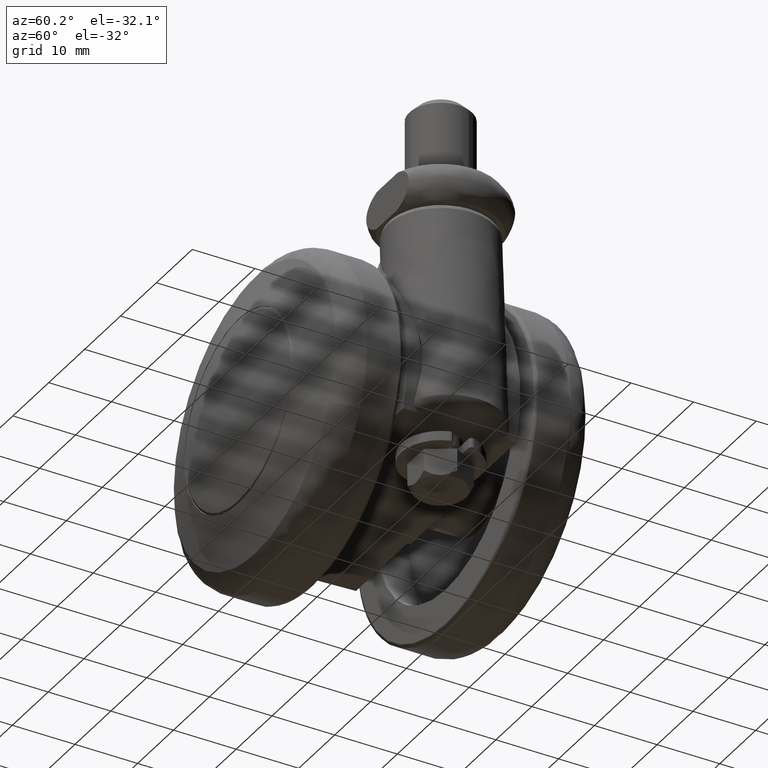
[diagram: clean part render]
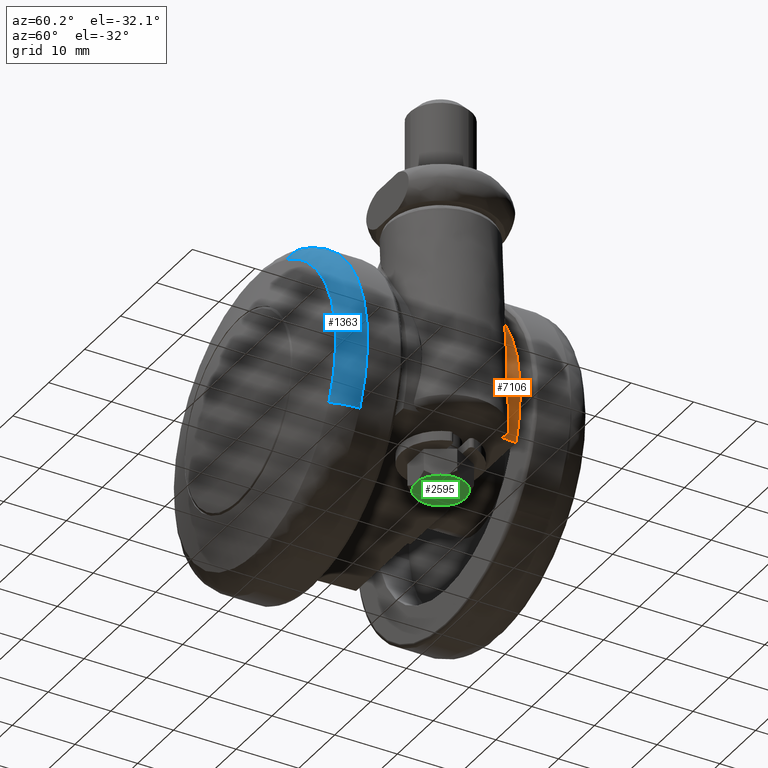
[diagram: same view with three faces highlighted in distinct colors, each labeled with its STEP entity id]
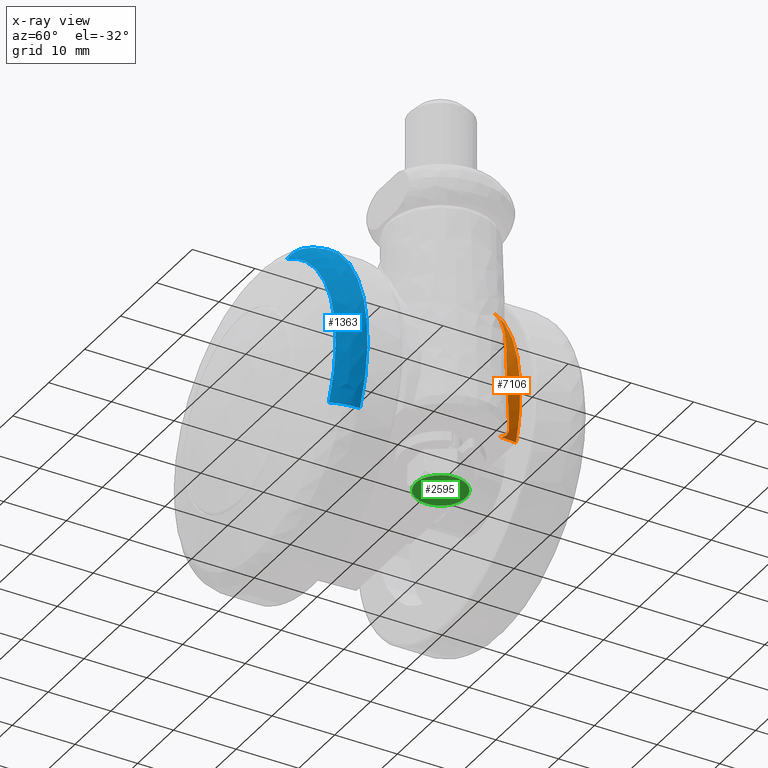
[diagram: x-ray of the same camera — body ghosted, the three highlighted faces saturated]
A machine part, auxiliary view with three faces highlighted in distinct colors.
The next image is the same camera in x-ray (body ghosted, the three faces saturated) — at least one of them is partly hidden behind the body in this view.
Their STEP definitions:

[orange] entity #7106 — the highlighted face is a freeform B-spline surface patch.
#5330=CARTESIAN_POINT('',(22.859472237033650,7.557258832530200,-5.944913710180160));
#5331=VERTEX_POINT('',#5330);
#5347=CARTESIAN_POINT('',(22.508473345036649,6.008970139218520,-7.500000000000000));
#5348=VERTEX_POINT('',#5347);
#5368=CARTESIAN_POINT('',(22.859472237033639,7.557258832530212,-5.944913710180165));
#5369=CARTESIAN_POINT('',(22.845347138984810,7.564525459840313,-5.996621736036759));
#5370=CARTESIAN_POINT('',(22.817254517073721,7.578977650748001,-6.099460952807962));
#5371=CARTESIAN_POINT('',(22.775110222079459,7.576472985918750,-6.255476035051276));
#5372=CARTESIAN_POINT('',(22.733589654280980,7.555714660842550,-6.410583780616468));
#5373=CARTESIAN_POINT('',(22.679860974324271,7.502475385351057,-6.613337105601644));
#5374=CARTESIAN_POINT('',(22.617181306565389,7.393584463970646,-6.853319514282594));
#5375=CARTESIAN_POINT('',(22.551462283653429,7.172065584943179,-7.120477657406914));
#5376=CARTESIAN_POINT('',(22.503545053919829,6.860126074050095,-7.341158383501779));
#5377=CARTESIAN_POINT('',(22.484720487686559,6.451608159627006,-7.485223112365691));
#5378=CARTESIAN_POINT('',(22.500320880463789,6.160892525935901,-7.494928271106090));
#5379=CARTESIAN_POINT('',(22.508473345036649,6.008970139218521,-7.500000000000034));
#5380=B_SPLINE_CURVE_WITH_KNOTS('',3,(#5368,#5369,#5370,#5371,#5372,#5373,#5374,#5375,#5376,#5377,#5378,#5379),.UNSPECIFIED.,.F.,.U.,(4,1,1,1,1,1,1,1,1,4),(0.0,0.063197402396594,0.125689798764796,0.188384347928890,0.252179452144803,0.378410248853935,0.501744799446879,0.661062130236840,0.822877602179332,1.0),.UNSPECIFIED.);
#5381=EDGE_CURVE('',#5331,#5348,#5380,.T.);
#5506=CARTESIAN_POINT('',(15.987109898350051,8.999999997297421,17.224073311950999));
#5507=VERTEX_POINT('',#5506);
#5552=CARTESIAN_POINT('',(15.987109898350051,8.999999997297421,17.224073311950999));
#5553=CARTESIAN_POINT('',(16.120306098309928,8.986237419856050,17.100462468158071));
#5554=CARTESIAN_POINT('',(16.400290341086290,8.957307879638437,16.840627063629011));
#5555=CARTESIAN_POINT('',(16.828059439204331,8.899916391611106,16.420042618498140));
#5556=CARTESIAN_POINT('',(17.283834082584221,8.830094054547516,15.949873536413270));
#5557=CARTESIAN_POINT('',(17.763083790163730,8.746779224185607,15.426291065152430));
#5558=CARTESIAN_POINT('',(18.358696559718819,8.631125084540905,14.734343928547551));
#5559=CARTESIAN_POINT('',(19.174214730118571,8.454187220517662,13.700937536991409));
#5560=CARTESIAN_POINT('',(19.937457251528961,8.276736107010089,12.585076771176039));
#5561=CARTESIAN_POINT('',(20.596795065058249,8.093829653300572,11.488905978315710));
#5562=CARTESIAN_POINT('',(21.103474150454961,7.926823451379988,10.565633259621590));
#5563=CARTESIAN_POINT('',(21.718404343048299,7.691922747831107,9.304541249700881));
#5564=CARTESIAN_POINT('',(22.270523165710131,7.444499204481090,7.947985056781145));
#5565=CARTESIAN_POINT('',(22.774124979581028,7.186908804466797,6.422330697271317));
#5566=CARTESIAN_POINT('',(23.143930291227129,6.992911037861330,5.004153472505241));
#5567=CARTESIAN_POINT('',(23.436076405493608,6.842329324602295,3.446824175787090));
#5568=CARTESIAN_POINT('',(23.618177521789580,6.777347184170083,1.893486910387614));
#5569=CARTESIAN_POINT('',(23.690125156980510,6.792400230195062,0.317196278516075));
#5570=CARTESIAN_POINT('',(23.651355192239549,6.891654275512122,-1.274846850814564));
#5571=CARTESIAN_POINT('',(23.523986569621929,7.038334505625166,-2.622224582919101));
#5572=CARTESIAN_POINT('',(23.344854786952020,7.204045110374032,-3.800749084159956));
#5573=CARTESIAN_POINT('',(23.146734815529300,7.365225143021434,-4.831388397263618));
#5574=CARTESIAN_POINT('',(22.959515240381851,7.490380552932833,-5.557113749629076));
#5575=CARTESIAN_POINT('',(22.859472237033650,7.557258832530200,-5.944913710180160));
#5576=B_SPLINE_CURVE_WITH_KNOTS('',3,(#5552,#5553,#5554,#5555,#5556,#5557,#5558,#5559,#5560,#5561,#5562,#5563,#5564,#5565,#5566,#5567,#5568,#5569,#5570,#5571,#5572,#5573,#5574,#5575),.UNSPECIFIED.,.F.,.U.,(4,1,1,1,1,1,1,1,1,1,1,1,1,1,1,1,1,1,1,1,1,4),(0.0,0.021329994640280,0.044836582421883,0.070526176644383,0.098404437260415,0.128476552372200,0.178229425956275,0.253813648161927,0.287875128194325,0.329458890949756,0.378582253604620,0.454323879246779,0.503107788537868,0.568964059642171,0.627169356967948,0.689224719074587,0.751942581923512,0.811631865765096,0.875786090670811,0.911076711651361,0.952482784842399,1.0),.UNSPECIFIED.);
#5577=EDGE_CURVE('',#5507,#5331,#5576,.T.);
#6963=CARTESIAN_POINT('',(22.271056962330899,9.0,-7.500000000000000));
#6964=VERTEX_POINT('',#6963);
#6965=CARTESIAN_POINT('',(15.987109898350051,8.999999997297421,17.224073311950999));
#6966=CARTESIAN_POINT('',(27.117918141920033,8.999999998648709,6.892541800001062));
#6967=CARTESIAN_POINT('',(22.271056962330899,9.0,-7.500000000000000));
#6975=(BOUNDED_CURVE()B_SPLINE_CURVE(2,(#6965,#6966,#6967),.UNSPECIFIED.,.F.,.U.)CURVE()GEOMETRIC_REPRESENTATION_ITEM()QUASI_UNIFORM_CURVE()RATIONAL_B_SPLINE_CURVE((1.0,0.839882926631558,1.0))REPRESENTATION_ITEM(''));
#6976=EDGE_CURVE('',#5507,#6964,#6975,.T.);
#6993=CARTESIAN_POINT('',(22.508473345036649,6.008970139218520,-7.500000000000000));
#6994=CARTESIAN_POINT('',(22.445029146177308,7.008649669417468,-7.500000000000000));
#6995=CARTESIAN_POINT('',(22.365875098585281,8.005657028487292,-7.500000000000001));
#6996=CARTESIAN_POINT('',(22.271056962330899,9.0,-7.500000000000000));
#6997=B_SPLINE_CURVE_WITH_KNOTS('',3,(#6993,#6994,#6995,#6996),.UNSPECIFIED.,.F.,.U.,(4,4),(0.0,0.012657862134114),.UNSPECIFIED.);
#6998=EDGE_CURVE('',#5348,#6964,#6997,.T.);
#7077=CARTESIAN_POINT('',(14.896400824027547,9.149119175906902,18.157884528158508));
#7078=CARTESIAN_POINT('',(14.992135447736631,7.506262200548648,18.274579712665908));
#7079=CARTESIAN_POINT('',(15.053446248472456,5.859320285281365,18.349314170555537));
#7080=CARTESIAN_POINT('',(23.486411561752607,9.149119175906897,11.110794718031254));
#7081=CARTESIAN_POINT('',(23.637351563951942,7.506262200548648,11.182200406157198));
#7082=CARTESIAN_POINT('',(23.734017242881563,5.859320285281367,11.227930359923960));
#7083=CARTESIAN_POINT('',(23.486411561752611,9.149119175906895,0.0));
#7084=CARTESIAN_POINT('',(23.637351563951952,7.506262200548647,0.0));
#7085=CARTESIAN_POINT('',(23.734017242881563,5.859320285281363,0.0));
#7086=CARTESIAN_POINT('',(23.486411561752615,9.149119175906897,-4.556155888409634));
#7087=CARTESIAN_POINT('',(23.637351563951945,7.506262200548649,-4.585436912375721));
#7088=CARTESIAN_POINT('',(23.734017242881567,5.859320285281366,-4.604189198185935));
#7089=CARTESIAN_POINT('',(21.782814486766952,9.149119175906895,-8.781829028347238));
#7090=CARTESIAN_POINT('',(21.922805990275091,7.506262200548649,-8.838267164474068));
#7091=CARTESIAN_POINT('',(22.012459982151402,5.859320285281364,-8.874411530889386));
#7099=(BOUNDED_SURFACE()B_SPLINE_SURFACE(2,2,((#7077,#7080,#7083,#7086,#7089),(#7078,#7081,#7084,#7087,#7090),(#7079,#7082,#7085,#7088,#7091)),.UNSPECIFIED.,.F.,.F.,.U.)B_SPLINE_SURFACE_WITH_KNOTS((3,3),(3,2,3),(0.0,3.301149563061193),(0.0,21.944924405582292,31.906678199088621),.UNSPECIFIED.)GEOMETRIC_REPRESENTATION_ITEM()RATIONAL_B_SPLINE_SURFACE(((0.754932392439896,0.737755479075268,0.882321162939723,0.816696523591171,0.784401310838444),(0.754361879122371,0.737197946599375,0.881654380087601,0.816079334227262,0.783808527433469),(0.753996961131293,0.736841331556720,0.881227885119985,0.815684560790999,0.783429364804580)))REPRESENTATION_ITEM('')SURFACE());
#7100=ORIENTED_EDGE('',*,*,#5577,.T.);
#7101=ORIENTED_EDGE('',*,*,#5381,.T.);
#7102=ORIENTED_EDGE('',*,*,#6998,.T.);
#7103=ORIENTED_EDGE('',*,*,#6976,.F.);
#7104=EDGE_LOOP('',(#7100,#7101,#7102,#7103));
#7105=FACE_OUTER_BOUND('',#7104,.T.);
#7106=ADVANCED_FACE('',(#7105),#7099,.T.);

[blue] entity #1363 — the highlighted face is a freeform B-spline surface patch.
#950=CARTESIAN_POINT('',(10.072660892843579,-16.249585000111079,22.881029315522049));
#951=VERTEX_POINT('',#950);
#965=CARTESIAN_POINT('',(22.881029315522049,-16.249585000111079,-10.072660892843579));
#966=VERTEX_POINT('',#965);
#967=CARTESIAN_POINT('',(22.881029315522049,-16.249585000111079,-10.072660892843576));
#968=CARTESIAN_POINT('',(25.0,-16.249584999999946,-5.259212801415504));
#969=CARTESIAN_POINT('',(25.0,-16.249584999999950,1.789254E-015));
#970=CARTESIAN_POINT('',(24.999999999999996,-16.249584999999950,16.309732946573114));
#971=CARTESIAN_POINT('',(10.072660892843581,-16.249585000111075,22.881029315522053));
#979=(BOUNDED_CURVE()B_SPLINE_CURVE(2,(#967,#968,#969,#970,#971),.UNSPECIFIED.,.F.,.U.)B_SPLINE_CURVE_WITH_KNOTS((3,2,3),(0.181585009861425,0.250000000000000,0.431585009861425),.UNSPECIFIED.)CURVE()GEOMETRIC_REPRESENTATION_ITEM()RATIONAL_B_SPLINE_CURVE((0.883563120518119,0.919846853292888,1.0,0.787259927893659,0.883563120518120))REPRESENTATION_ITEM(''));
#980=EDGE_CURVE('',#966,#951,#979,.T.);
#1243=CARTESIAN_POINT('',(9.087749509929518,-19.934754244706831,20.643707274505701));
#1244=VERTEX_POINT('',#1243);
#1260=CARTESIAN_POINT('',(10.072660892843581,-16.249585000111075,22.881029315522049));
#1261=CARTESIAN_POINT('',(10.072660892782158,-18.902941115576056,22.881029315387995));
#1262=CARTESIAN_POINT('',(9.087749509929518,-19.934754244706827,20.643707274505704));
#1270=(BOUNDED_CURVE()B_SPLINE_CURVE(2,(#1260,#1261,#1262),.UNSPECIFIED.,.F.,.U.)B_SPLINE_CURVE_WITH_KNOTS((3,3),(-1.658407430936006,-0.338347024310011),.UNSPECIFIED.)CURVE()GEOMETRIC_REPRESENTATION_ITEM()RATIONAL_B_SPLINE_CURVE((0.902190447933897,0.752128648692594,0.902930160553191))REPRESENTATION_ITEM(''));
#1271=EDGE_CURVE('',#951,#1244,#1270,.T.);
#1278=CARTESIAN_POINT('',(20.643707274505690,-19.934754244706831,-9.087749509929516));
#1279=VERTEX_POINT('',#1278);
#1280=CARTESIAN_POINT('',(22.881029315522049,-16.249585000111075,-10.072660892843576));
#1281=CARTESIAN_POINT('',(22.881029315387995,-18.902941115576056,-10.072660892782155));
#1282=CARTESIAN_POINT('',(20.643707274505694,-19.934754244706827,-9.087749509929516));
#1290=(BOUNDED_CURVE()B_SPLINE_CURVE(2,(#1280,#1281,#1282),.UNSPECIFIED.,.F.,.U.)B_SPLINE_CURVE_WITH_KNOTS((3,3),(-1.658407430936006,-0.338347024310011),.UNSPECIFIED.)CURVE()GEOMETRIC_REPRESENTATION_ITEM()RATIONAL_B_SPLINE_CURVE((0.902190447933897,0.752128648692594,0.902930160553191))REPRESENTATION_ITEM(''));
#1291=EDGE_CURVE('',#966,#1279,#1290,.T.);
#1326=CARTESIAN_POINT('',(22.875538375698529,-16.030588257595063,-10.070243677511272));
#1327=CARTESIAN_POINT('',(32.945782053209797,-16.030588257595063,12.805294698187254));
#1328=CARTESIAN_POINT('',(10.070243677511275,-16.030588257595063,22.875538375698540));
#1329=CARTESIAN_POINT('',(23.024910674928908,-19.007082063957636,-10.136000182438734));
#1330=CARTESIAN_POINT('',(33.160910857367632,-19.007082063957629,12.888910492490167));
#1331=CARTESIAN_POINT('',(10.136000182438741,-19.007082063957636,23.024910674928908));
#1332=CARTESIAN_POINT('',(20.457073915741994,-20.014325103666398,-9.005589983369774));
#1333=CARTESIAN_POINT('',(29.462663899111767,-20.014325103666398,11.451483932372218));
#1334=CARTESIAN_POINT('',(9.005589983369779,-20.014325103666398,20.457073915742008));
#1342=(BOUNDED_SURFACE()B_SPLINE_SURFACE(2,2,((#1326,#1329,#1332),(#1327,#1330,#1333),(#1328,#1331,#1334)),.UNSPECIFIED.,.F.,.F.,.U.)B_SPLINE_SURFACE_WITH_KNOTS((3,3),(3,3),(0.0,41.411416030013413),(0.0,5.306212698356131),.UNSPECIFIED.)GEOMETRIC_REPRESENTATION_ITEM()RATIONAL_B_SPLINE_SURFACE(((0.917932346626404,0.736349806455484,0.918745946287786),(0.649076186970011,0.520677941470074,0.649651488807745),(0.917932346626404,0.736349806455484,0.918745946287786)))REPRESENTATION_ITEM('')SURFACE());
#1343=CARTESIAN_POINT('',(20.643707274505697,-19.934754244706827,-9.087749509929516));
#1344=CARTESIAN_POINT('',(22.555483695890050,-19.934754434471508,-4.744963543888342));
#1345=CARTESIAN_POINT('',(22.555483695890050,-19.934754434471500,1.789254E-015));
#1346=CARTESIAN_POINT('',(22.555483695890040,-19.934754434471504,14.714956622339097));
#1347=CARTESIAN_POINT('',(9.087749509929518,-19.934754244706831,20.643707274505704));
#1355=(BOUNDED_CURVE()B_SPLINE_CURVE(2,(#1343,#1344,#1345,#1346,#1347),.UNSPECIFIED.,.F.,.U.)B_SPLINE_CURVE_WITH_KNOTS((3,2,3),(0.181585009860542,0.250000000000000,0.431585009860542),.UNSPECIFIED.)CURVE()GEOMETRIC_REPRESENTATION_ITEM()RATIONAL_B_SPLINE_CURVE((0.883563120517182,0.919846853291854,1.0,0.787259927894694,0.883563120517183))REPRESENTATION_ITEM(''));
#1356=EDGE_CURVE('',#1279,#1244,#1355,.T.);
#1357=ORIENTED_EDGE('',*,*,#1356,.F.);
#1358=ORIENTED_EDGE('',*,*,#1291,.F.);
#1359=ORIENTED_EDGE('',*,*,#980,.T.);
#1360=ORIENTED_EDGE('',*,*,#1271,.T.);
#1361=EDGE_LOOP('',(#1357,#1358,#1359,#1360));
#1362=FACE_OUTER_BOUND('',#1361,.T.);
#1363=ADVANCED_FACE('',(#1362),#1342,.T.);

[green] entity #2595 — the highlighted face is a freeform B-spline surface patch.
#2498=CARTESIAN_POINT('',(12.600400009850460,4.399599984494448,-15.250000000000000));
#2499=CARTESIAN_POINT('',(21.399599761957841,4.399599984494448,-15.250000000000000));
#2500=CARTESIAN_POINT('',(12.600400009850460,-4.399600199071169,-15.250000000000000));
#2501=CARTESIAN_POINT('',(21.399599761957841,-4.399600199071169,-15.250000000000000));
#2502=B_SPLINE_SURFACE_WITH_KNOTS('',1,1,((#2498,#2500),(#2499,#2501)),.UNSPECIFIED.,.F.,.F.,.U.,(2,2),(2,2),(0.0,8.799199752107384),(0.0,8.799200183565617),.UNSPECIFIED.);
#2503=CARTESIAN_POINT('',(13.535898442431060,-1.999999900287830,-15.250000000000000));
#2504=VERTEX_POINT('',#2503);
#2505=CARTESIAN_POINT('',(13.535898442431060,1.999999900287830,-15.250000000000000));
#2506=VERTEX_POINT('',#2505);
#2507=CARTESIAN_POINT('',(13.535898442431060,-1.999999900287830,-15.250000000000000));
#2508=CARTESIAN_POINT('',(12.381197884862237,-8.673617E-016,-15.249999999999996));
#2509=CARTESIAN_POINT('',(13.535898442431060,1.999999900287830,-15.250000000000000));
#2517=(BOUNDED_CURVE()B_SPLINE_CURVE(2,(#2507,#2508,#2509),.UNSPECIFIED.,.F.,.U.)CURVE()GEOMETRIC_REPRESENTATION_ITEM()QUASI_UNIFORM_CURVE()RATIONAL_B_SPLINE_CURVE((1.0,0.866025410980547,1.0))REPRESENTATION_ITEM(''));
#2518=EDGE_CURVE('',#2504,#2506,#2517,.T.);
#2519=ORIENTED_EDGE('',*,*,#2518,.T.);
#2520=CARTESIAN_POINT('',(17.0,4.0,-15.250000000000000));
#2521=VERTEX_POINT('',#2520);
#2522=CARTESIAN_POINT('',(13.535898442431060,1.999999900287830,-15.250000000000000));
#2523=CARTESIAN_POINT('',(14.690598884862249,4.0,-15.250000000000000));
#2524=CARTESIAN_POINT('',(17.0,4.0,-15.250000000000000));
#2532=(BOUNDED_CURVE()B_SPLINE_CURVE(2,(#2522,#2523,#2524),.UNSPECIFIED.,.F.,.U.)CURVE()GEOMETRIC_REPRESENTATION_ITEM()QUASI_UNIFORM_CURVE()RATIONAL_B_SPLINE_CURVE((1.0,0.866025400186384,1.0))REPRESENTATION_ITEM(''));
#2533=EDGE_CURVE('',#2506,#2521,#2532,.T.);
#2534=ORIENTED_EDGE('',*,*,#2533,.T.);
#2535=CARTESIAN_POINT('',(20.464101557568600,2.000000766313095,-15.250000000000000));
#2536=VERTEX_POINT('',#2535);
#2537=CARTESIAN_POINT('',(17.0,4.0,-15.250000000000000));
#2538=CARTESIAN_POINT('',(19.309400615137776,4.000000000000000,-15.249999999999998));
#2539=CARTESIAN_POINT('',(20.464101557568600,2.000000766313095,-15.250000000000000));
#2547=(BOUNDED_CURVE()B_SPLINE_CURVE(2,(#2537,#2538,#2539),.UNSPECIFIED.,.F.,.U.)CURVE()GEOMETRIC_REPRESENTATION_ITEM()QUASI_UNIFORM_CURVE()RATIONAL_B_SPLINE_CURVE((1.0,0.866025447061381,1.0))REPRESENTATION_ITEM(''));
#2548=EDGE_CURVE('',#2521,#2536,#2547,.T.);
#2549=ORIENTED_EDGE('',*,*,#2548,.T.);
#2550=CARTESIAN_POINT('',(20.464101557568600,-2.000000766313095,-15.250000000000000));
#2551=VERTEX_POINT('',#2550);
#2552=CARTESIAN_POINT('',(20.464101557568600,2.000000766313095,-15.250000000000000));
#2553=CARTESIAN_POINT('',(21.618802615137866,8.673617E-016,-15.250000000000000));
#2554=CARTESIAN_POINT('',(20.464101557568600,-2.000000766313095,-15.250000000000000));
#2562=(BOUNDED_CURVE()B_SPLINE_CURVE(2,(#2552,#2553,#2554),.UNSPECIFIED.,.F.,.U.)CURVE()GEOMETRIC_REPRESENTATION_ITEM()QUASI_UNIFORM_CURVE()RATIONAL_B_SPLINE_CURVE((1.0,0.866025317230534,1.0))REPRESENTATION_ITEM(''));
#2563=EDGE_CURVE('',#2536,#2551,#2562,.T.);
#2564=ORIENTED_EDGE('',*,*,#2563,.T.);
#2565=CARTESIAN_POINT('',(17.0,-4.0,-15.250000000000000));
#2566=VERTEX_POINT('',#2565);
#2567=CARTESIAN_POINT('',(20.464101557568600,-2.000000766313095,-15.250000000000000));
#2568=CARTESIAN_POINT('',(19.309400615137779,-4.000000000000000,-15.250000000000004));
#2569=CARTESIAN_POINT('',(17.0,-4.0,-15.250000000000000));
#2577=(BOUNDED_CURVE()B_SPLINE_CURVE(2,(#2567,#2568,#2569),.UNSPECIFIED.,.F.,.U.)CURVE()GEOMETRIC_REPRESENTATION_ITEM()QUASI_UNIFORM_CURVE()RATIONAL_B_SPLINE_CURVE((1.0,0.866025447061381,1.0))REPRESENTATION_ITEM(''));
#2578=EDGE_CURVE('',#2551,#2566,#2577,.T.);
#2579=ORIENTED_EDGE('',*,*,#2578,.T.);
#2580=CARTESIAN_POINT('',(17.0,-4.0,-15.250000000000000));
#2581=CARTESIAN_POINT('',(14.690598884862258,-4.000000000000001,-15.249999999999996));
#2582=CARTESIAN_POINT('',(13.535898442431060,-1.999999900287830,-15.250000000000000));
#2590=(BOUNDED_CURVE()B_SPLINE_CURVE(2,(#2580,#2581,#2582),.UNSPECIFIED.,.F.,.U.)CURVE()GEOMETRIC_REPRESENTATION_ITEM()QUASI_UNIFORM_CURVE()RATIONAL_B_SPLINE_CURVE((1.0,0.866025400186384,1.0))REPRESENTATION_ITEM(''));
#2591=EDGE_CURVE('',#2566,#2504,#2590,.T.);
#2592=ORIENTED_EDGE('',*,*,#2591,.T.);
#2593=EDGE_LOOP('',(#2519,#2534,#2549,#2564,#2579,#2592));
#2594=FACE_OUTER_BOUND('',#2593,.T.);
#2595=ADVANCED_FACE('',(#2594),#2502,.T.);